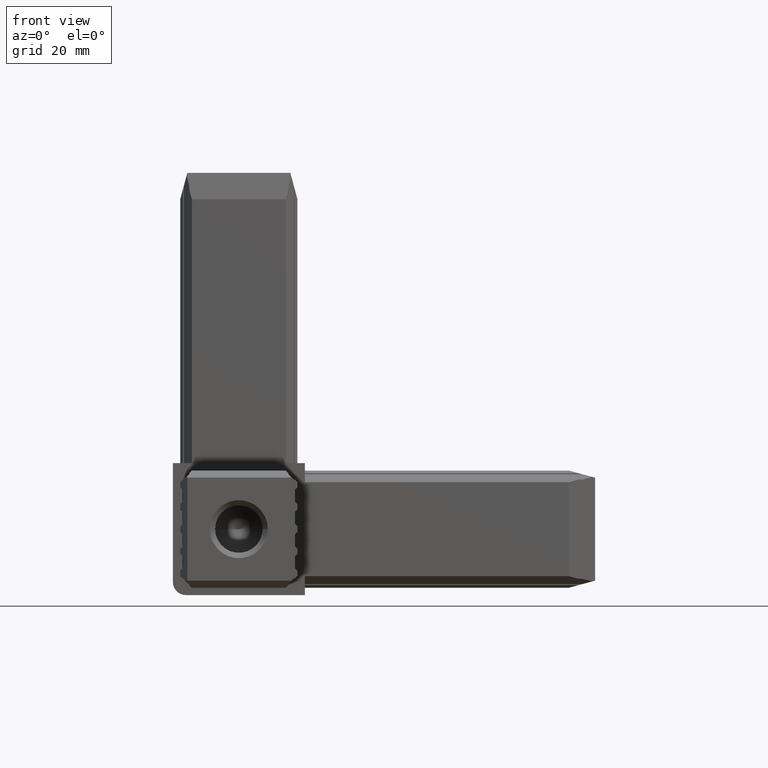
[diagram: clean part render]
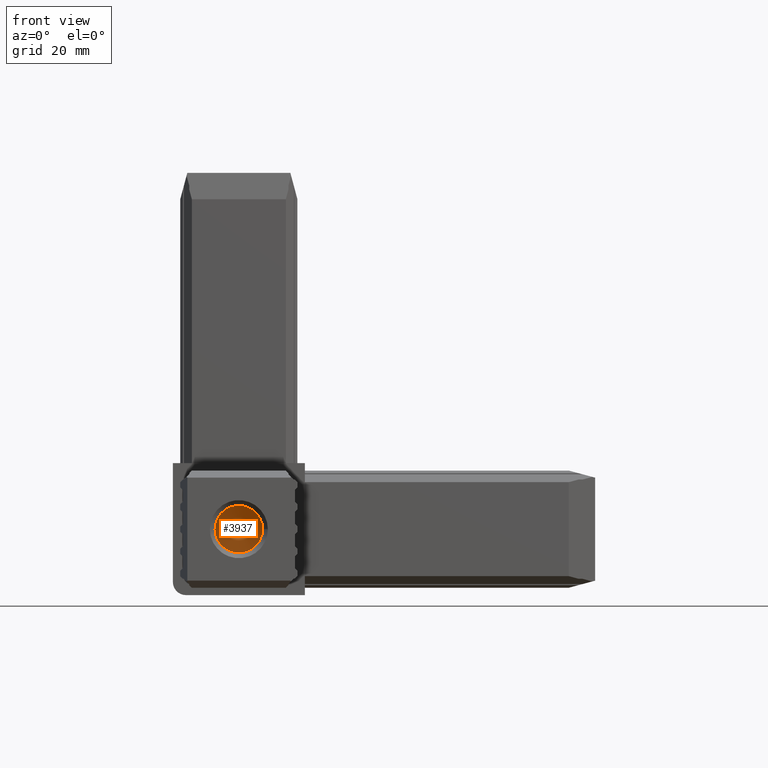
[diagram: same view with one face highlighted and labeled with its STEP entity id]
A machine part, front view. The second image highlights one B-rep face of the part: STEP entity #3937.
In plain terms, the highlighted conical surface has half-angle 59 deg.
Its self-contained STEP definition (entity closure, byte-faithful):
#226=FACE_OUTER_BOUND('',#431,.T.);
#431=EDGE_LOOP('',(#2800,#2801,#2802,#2803));
#645=LINE('',#5457,#1209);
#1209=VECTOR('',#4443,2.25);
#1768=CIRCLE('',#4171,4.5);
#1769=CIRCLE('',#4172,4.5);
#1797=VERTEX_POINT('',#5441);
#1798=VERTEX_POINT('',#5443);
#1803=VERTEX_POINT('',#5456);
#2194=EDGE_CURVE('',#1798,#1797,#1768,.T.);
#2195=EDGE_CURVE('',#1797,#1798,#1769,.T.);
#2200=EDGE_CURVE('',#1797,#1803,#645,.T.);
#2800=ORIENTED_EDGE('',*,*,#2194,.T.);
#2801=ORIENTED_EDGE('',*,*,#2200,.T.);
#2802=ORIENTED_EDGE('',*,*,#2200,.F.);
#2803=ORIENTED_EDGE('',*,*,#2195,.T.);
#3925=CONICAL_SURFACE('',#4174,2.25,1.02974425867665);
#3937=ADVANCED_FACE('',(#226),#3925,.F.);
#4171=AXIS2_PLACEMENT_3D('',#5444,#4431,#4432);
#4172=AXIS2_PLACEMENT_3D('',#5445,#4433,#4434);
#4174=AXIS2_PLACEMENT_3D('',#5455,#4441,#4442);
#4431=DIRECTION('center_axis',(0.,-1.,0.));
#4432=DIRECTION('ref_axis',(1.,0.,0.));
#4433=DIRECTION('center_axis',(0.,-1.,0.));
#4434=DIRECTION('ref_axis',(1.,0.,0.));
#4441=DIRECTION('center_axis',(0.,-1.,0.));
#4442=DIRECTION('ref_axis',(1.,0.,0.));
#4443=DIRECTION('',(0.857167300702112,0.515038074910054,1.04972719113862E-16));
#5441=CARTESIAN_POINT('',(-4.5,7.5,-5.51091059616309E-16));
#5443=CARTESIAN_POINT('',(4.5,7.5,0.));
#5444=CARTESIAN_POINT('Origin',(0.,7.5,0.));
#5445=CARTESIAN_POINT('Origin',(0.,7.5,0.));
#5455=CARTESIAN_POINT('Origin',(0.,8.85193639281201,0.));
#5456=CARTESIAN_POINT('',(0.,10.203872785624,0.));
#5457=CARTESIAN_POINT('',(-2.25,8.85193639281201,-2.75545529808154E-16));